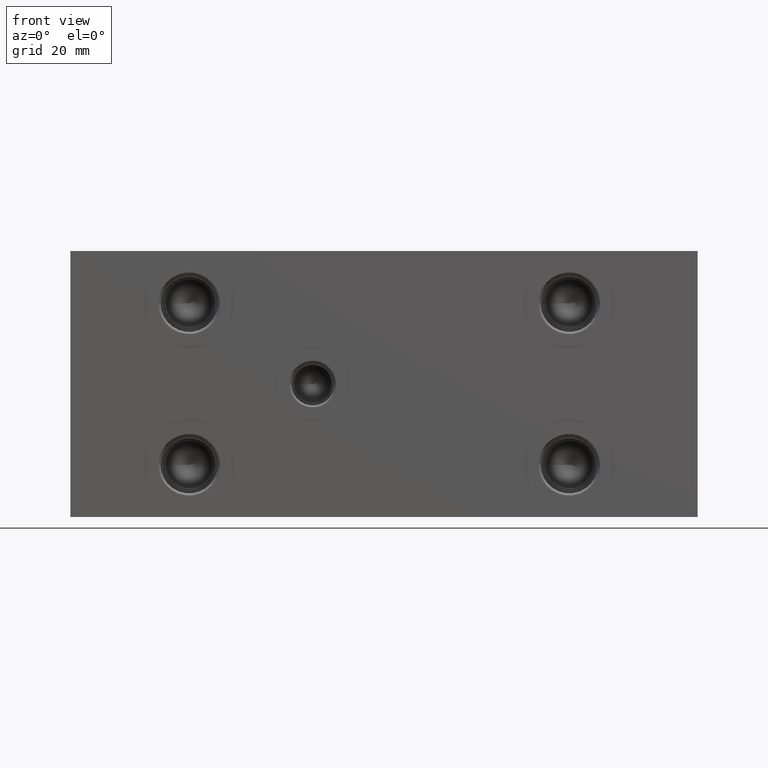
[diagram: clean part render]
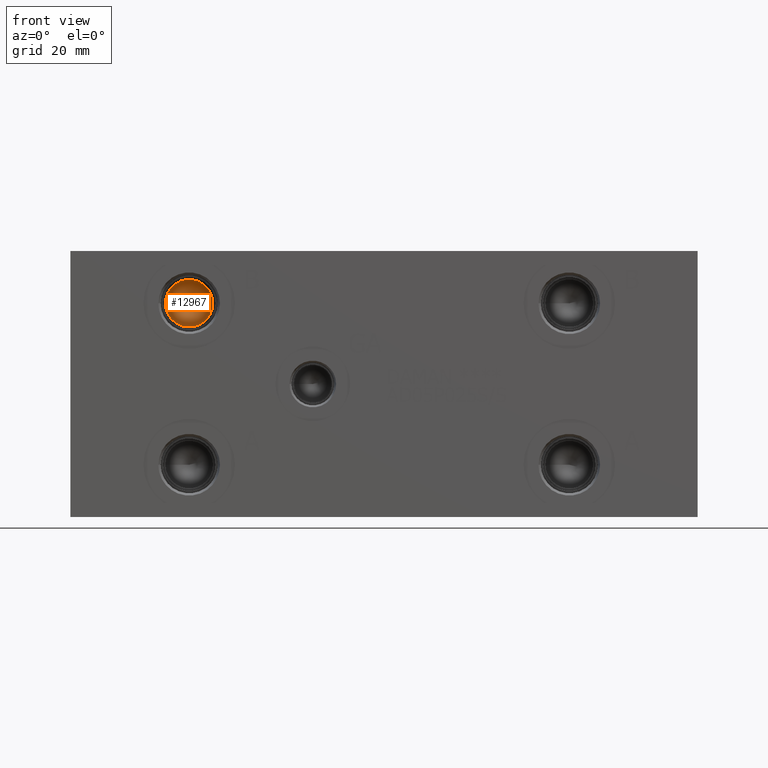
[diagram: same view with one face highlighted and labeled with its STEP entity id]
A machine part, front view. The second image highlights one B-rep face of the part: STEP entity #12967.
In plain terms, the highlighted conical surface has half-angle 60 deg.
Its self-contained STEP definition (entity closure, byte-faithful):
#49=CONICAL_SURFACE('',#13687,3.96875,1.0471975511966);
#362=CIRCLE('',#13688,7.9375);
#363=CIRCLE('',#13689,7.9375);
#1704=FACE_OUTER_BOUND('',#2458,.T.);
#2458=EDGE_LOOP('',(#11116,#11117,#11118,#11119));
#3652=LINE('',#22300,#4797);
#4797=VECTOR('',#16223,3.96875);
#5985=VERTEX_POINT('',#22296);
#5986=VERTEX_POINT('',#22297);
#5987=VERTEX_POINT('',#22299);
#7745=EDGE_CURVE('',#5985,#5986,#362,.T.);
#7746=EDGE_CURVE('',#5986,#5987,#3652,.T.);
#7747=EDGE_CURVE('',#5986,#5985,#363,.T.);
#11116=ORIENTED_EDGE('',*,*,#7745,.T.);
#11117=ORIENTED_EDGE('',*,*,#7746,.T.);
#11118=ORIENTED_EDGE('',*,*,#7746,.F.);
#11119=ORIENTED_EDGE('',*,*,#7747,.T.);
#12967=ADVANCED_FACE('',(#1704),#49,.F.);
#13687=AXIS2_PLACEMENT_3D('',#22295,#16219,#16220);
#13688=AXIS2_PLACEMENT_3D('',#22298,#16221,#16222);
#13689=AXIS2_PLACEMENT_3D('',#22301,#16224,#16225);
#16219=DIRECTION('center_axis',(0.,-1.,0.));
#16220=DIRECTION('ref_axis',(1.,0.,0.));
#16221=DIRECTION('center_axis',(0.,-1.,0.));
#16222=DIRECTION('ref_axis',(1.,0.,0.));
#16223=DIRECTION('',(0.866025403784439,0.5,1.06057523872491E-16));
#16224=DIRECTION('center_axis',(0.,-1.,0.));
#16225=DIRECTION('ref_axis',(1.,0.,0.));
#22295=CARTESIAN_POINT('Origin',(39.6748,25.5239588808463,71.4248));
#22296=CARTESIAN_POINT('',(47.6123,23.2326,71.4248));
#22297=CARTESIAN_POINT('',(31.7373,23.2326,71.4248));
#22298=CARTESIAN_POINT('Origin',(39.6748,23.2326,71.4248));
#22299=CARTESIAN_POINT('',(39.6748,27.8153177616927,71.4248));
#22300=CARTESIAN_POINT('',(35.70605,25.5239588808463,71.4248));
#22301=CARTESIAN_POINT('Origin',(39.6748,23.2326,71.4248));